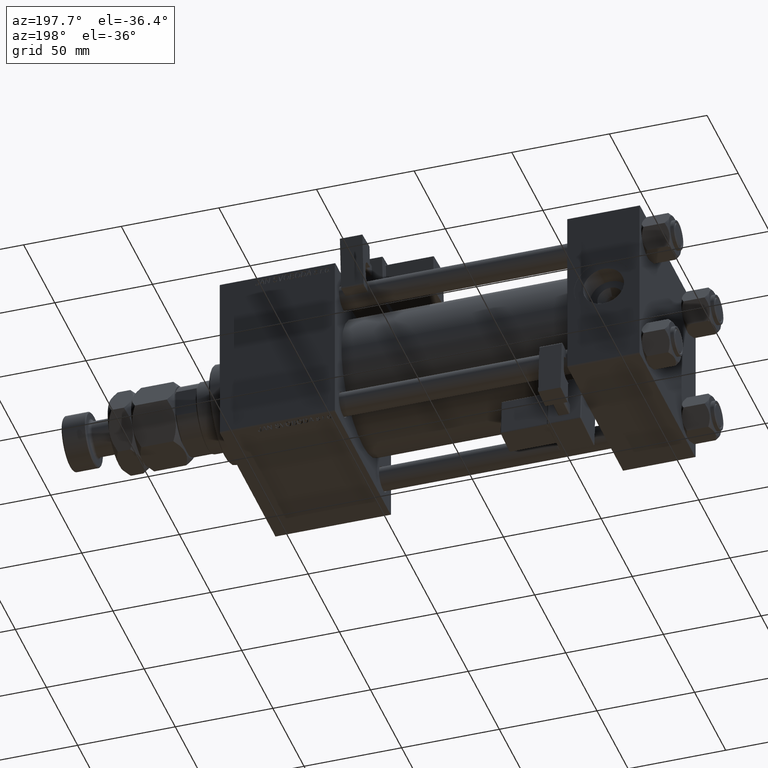
[diagram: clean part render]
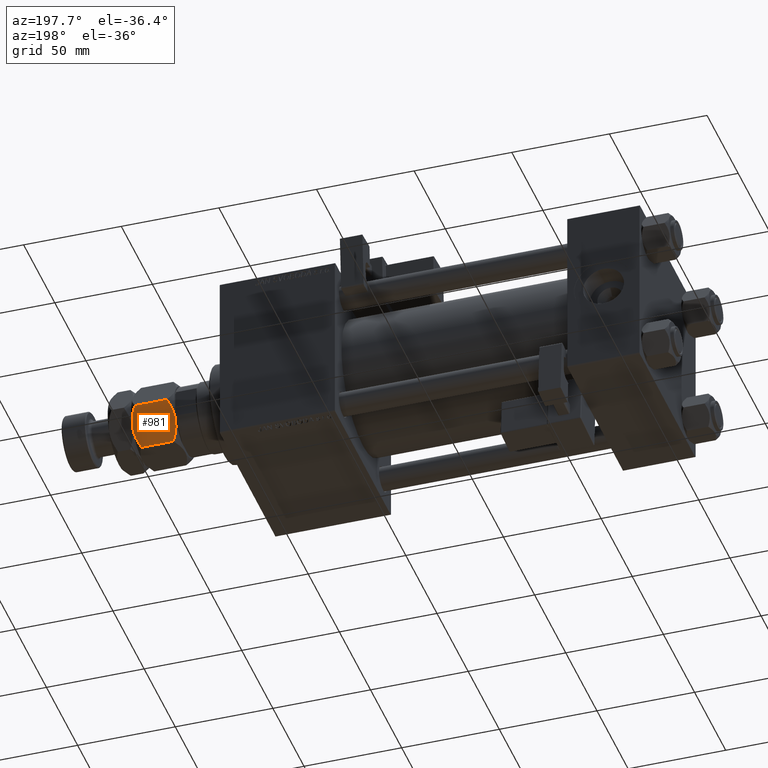
[diagram: same view with one face highlighted and labeled with its STEP entity id]
A machine part, auxiliary view. The second image highlights one B-rep face of the part: STEP entity #981.
In plain terms, the highlighted planar face has unit normal (0, -0.866, 0.5).
Its self-contained STEP definition (entity closure, byte-faithful):
#682 = EDGE_CURVE ( 'NONE', #5321, #36480, #36395, .T. ) ;
#912 = VECTOR ( 'NONE', #33319, 1000.000000000000000 ) ;
#981 = ADVANCED_FACE ( 'NONE', ( #47631 ), #46629, .F. ) ;
#1873 = ORIENTED_EDGE ( 'NONE', *, *, #20002, .T. ) ;
#4564 = CARTESIAN_POINT ( 'NONE',  ( 10.97671975407794953, 14.44719758599053705, 21.86127740090141458 ) ) ;
#5110 = CARTESIAN_POINT ( 'NONE',  ( 16.58866960374795241, 11.20713682960488100, 20.03022229336509596 ) ) ;
#5321 = VERTEX_POINT ( 'NONE', #23184 ) ;
#5369 = CARTESIAN_POINT ( 'NONE',  ( 10.58425150785354418, 14.67378923359658138, 21.91305310988184374 ) ) ;
#6976 = CARTESIAN_POINT ( 'NONE',  ( -1.065242688631141971E-15, 20.78460969082652454, 2.784609690826513440 ) ) ;
#8889 = CARTESIAN_POINT ( 'NONE',  ( 18.00000000000000000, 10.39230484541326227, 22.00000000000000000 ) ) ;
#10409 = CARTESIAN_POINT ( 'NONE',  ( 8.999999999999998224, 15.58845726811989429, 0.000000000000000000 ) ) ;
#10676 = CARTESIAN_POINT ( 'NONE',  ( 5.858009779716799592, 17.40248616759157230, 0.3405631022552657039 ) ) ;
#12007 = ORIENTED_EDGE ( 'NONE', *, *, #54124, .F. ) ;
#13150 = LINE ( 'NONE', #42426, #39775 ) ;
#13320 = CARTESIAN_POINT ( 'NONE',  ( 12.14199022028319774, 13.77442836864821629, 21.65943689774472602 ) ) ;
#14528 = CARTESIAN_POINT ( 'NONE',  ( 12.10430252359947900, 13.79618737047370125, 0.2763959071215808527 ) ) ;
#14799 = CARTESIAN_POINT ( 'NONE',  ( 2.854601888853809388, 19.13650452186755757, 1.277383077889868046 ) ) ;
#15328 = CARTESIAN_POINT ( 'NONE',  ( 8.209538469370125213, 16.04483044561309768, 0.01733285647408576435 ) ) ;
#15786 = CARTESIAN_POINT ( 'NONE',  ( 15.13928418966203004, 12.04393988858690179, 1.272574701504239680 ) ) ;
#16882 = CARTESIAN_POINT ( 'NONE',  ( 15.14539811114618573, 12.04041001437222214, 20.72261692211012729 ) ) ;
#17640 = EDGE_CURVE ( 'NONE', #23674, #23874, #52500, .T. ) ;
#17731 = B_SPLINE_CURVE_WITH_KNOTS ( 'NONE', 3,
 ( #35234, #39085, #51657, #30332, #26191, #51926 ),
 .UNSPECIFIED., .F., .F.,
 ( 4, 2, 4 ),
 ( 0.01077282027732746894, 0.01612137750481873466, 0.02146993473231000385 ),
 .UNSPECIFIED. ) ;
#19158 = CARTESIAN_POINT ( 'NONE',  ( 7.023280245922045140, 16.72971695024924443, 0.1387225990985735125 ) ) ;
#19693 = ORIENTED_EDGE ( 'NONE', *, *, #17640, .F. ) ;
#19841 = EDGE_LOOP ( 'NONE', ( #35276, #48054, #12007, #43043, #1873, #19693 ) ) ;
#20002 = EDGE_CURVE ( 'NONE', #5321, #23874, #33053, .T. ) ;
#20906 = EDGE_CURVE ( 'NONE', #49631, #23674, #28004, .T. ) ;
#21460 = DIRECTION ( 'NONE',  ( 0.8660254037844387076, -0.4999999999999999445, 0.000000000000000000 ) ) ;
#23184 = CARTESIAN_POINT ( 'NONE',  ( 18.00000000000000000, 10.39230484541326227, 19.21539030917347901 ) ) ;
#23674 = VERTEX_POINT ( 'NONE', #10409 ) ;
#23707 = CARTESIAN_POINT ( 'NONE',  ( 18.00000000000000000, 10.39230484541326227, 2.784609690826518325 ) ) ;
#23874 = VERTEX_POINT ( 'NONE', #43463 ) ;
#23979 = CARTESIAN_POINT ( 'NONE',  ( 8.999999999999998224, 15.58845726811989429, 0.000000000000000000 ) ) ;
#25883 = CARTESIAN_POINT ( 'NONE',  ( 9.790461530629873010, 15.13208409062669624, 21.98266714352591578 ) ) ;
#26191 = CARTESIAN_POINT ( 'NONE',  ( 1.409696000463982912, 19.97072132548310108, 20.02927867451694510 ) ) ;
#27087 = CARTESIAN_POINT ( 'NONE',  ( -1.065242688631141971E-15, 20.78460969082652454, 2.784609690826513440 ) ) ;
#28004 = B_SPLINE_CURVE_WITH_KNOTS ( 'NONE', 3,
 ( #27087, #43798, #14799, #31482, #10676, #19158, #52537, #15328, #31740, #48423 ),
 .UNSPECIFIED., .F., .F.,
 ( 4, 2, 2, 2, 4 ),
 ( 2.544307986815284985E-07, 0.005386537354063076002, 0.008079678815695275074, 0.009426249546511372007, 0.01077282027732746894 ),
 .UNSPECIFIED. ) ;
#28350 = CARTESIAN_POINT ( 'NONE',  ( 16.59030399953601531, 11.20619321075668218, 1.970721325483050235 ) ) ;
#28661 = VERTEX_POINT ( 'NONE', #52318 ) ;
#28915 = CARTESIAN_POINT ( 'NONE',  ( 18.00000000000000000, 10.39230484541326227, 22.00000000000000000 ) ) ;
#30332 = CARTESIAN_POINT ( 'NONE',  ( 2.860715810337963738, 19.13297464765287259, 20.72742529849575277 ) ) ;
#31482 = CARTESIAN_POINT ( 'NONE',  ( 5.097327296964719423, 17.84166640377631197, 0.5370855558290075216 ) ) ;
#31740 = CARTESIAN_POINT ( 'NONE',  ( 8.605874323383767788, 15.81600583360882162, -3.502481236896532691E-15 ) ) ;
#32641 = EDGE_CURVE ( 'NONE', #28661, #49631, #13150, .T. ) ;
#33053 = LINE ( 'NONE', #28915, #912 ) ;
#33319 = DIRECTION ( 'NONE',  ( -0.000000000000000000, -0.000000000000000000, -1.000000000000000000 ) ) ;
#35234 = CARTESIAN_POINT ( 'NONE',  ( 9.000000000000000000, 15.58845726811989074, 22.00000000000000000 ) ) ;
#35276 = ORIENTED_EDGE ( 'NONE', *, *, #20906, .F. ) ;
#36395 = B_SPLINE_CURVE_WITH_KNOTS ( 'NONE', 3,
 ( #50797, #5110, #16882, #43137, #13320, #4564, #5369, #25883, #46163, #46425 ),
 .UNSPECIFIED., .F., .F.,
 ( 4, 2, 2, 2, 4 ),
 ( 2.544307986796311447E-07, 0.005386537354063075135, 0.008079678815695273339, 0.009426249546511372007, 0.01077282027732746894 ),
 .UNSPECIFIED. ) ;
#36480 = VERTEX_POINT ( 'NONE', #48322 ) ;
#38161 = DIRECTION ( 'NONE',  ( -0.4999999999999999445, -0.8660254037844387076, 0.000000000000000000 ) ) ;
#39085 = CARTESIAN_POINT ( 'NONE',  ( 7.434539168300457135, 16.49227650070744033, 22.00000000000000711 ) ) ;
#39546 = AXIS2_PLACEMENT_3D ( 'NONE', #8889, #38161, #21460 ) ;
#39775 = VECTOR ( 'NONE', #46516, 1000.000000000000000 ) ;
#42426 = CARTESIAN_POINT ( 'NONE',  ( 0.000000000000000000, 20.78460969082652454, 22.00000000000000000 ) ) ;
#43043 = ORIENTED_EDGE ( 'NONE', *, *, #682, .F. ) ;
#43137 = CARTESIAN_POINT ( 'NONE',  ( 12.90267270303527525, 13.33524813246346952, 21.46291444417098759 ) ) ;
#43463 = CARTESIAN_POINT ( 'NONE',  ( 18.00000000000000000, 10.39230484541326227, 2.784609690826518325 ) ) ;
#43798 = CARTESIAN_POINT ( 'NONE',  ( 1.411330396252046260, 19.96977770663490759, 1.969777706634896708 ) ) ;
#46163 = CARTESIAN_POINT ( 'NONE',  ( 9.394125676616230436, 15.36090870263096875, 22.00000000000000000 ) ) ;
#46425 = CARTESIAN_POINT ( 'NONE',  ( 9.000000000000000000, 15.58845726811989074, 22.00000000000000000 ) ) ;
#46516 = DIRECTION ( 'NONE',  ( -0.000000000000000000, -0.000000000000000000, -1.000000000000000000 ) ) ;
#46629 = PLANE ( 'NONE',  #39546 ) ;
#47631 = FACE_OUTER_BOUND ( 'NONE', #19841, .T. ) ;
#48054 = ORIENTED_EDGE ( 'NONE', *, *, #32641, .F. ) ;
#48322 = CARTESIAN_POINT ( 'NONE',  ( 9.000000000000000000, 15.58845726811989074, 22.00000000000000000 ) ) ;
#48423 = CARTESIAN_POINT ( 'NONE',  ( 8.999999999999998224, 15.58845726811989429, 0.000000000000000000 ) ) ;
#49631 = VERTEX_POINT ( 'NONE', #6976 ) ;
#50797 = CARTESIAN_POINT ( 'NONE',  ( 18.00000000000000000, 10.39230484541326227, 19.21539030917347901 ) ) ;
#51657 = CARTESIAN_POINT ( 'NONE',  ( 5.895697476400520110, 17.38072716576608201, 21.72360409287842131 ) ) ;
#51926 = CARTESIAN_POINT ( 'NONE',  ( -2.339913671058857151E-16, 20.78460969082652454, 19.21539030917348256 ) ) ;
#52318 = CARTESIAN_POINT ( 'NONE',  ( -2.339913671058857151E-16, 20.78460969082652454, 19.21539030917348256 ) ) ;
#52500 = B_SPLINE_CURVE_WITH_KNOTS ( 'NONE', 3,
 ( #23979, #53273, #14528, #15786, #28350, #23707 ),
 .UNSPECIFIED., .F., .F.,
 ( 4, 2, 4 ),
 ( 0.01077282027732746894, 0.01612137750481873466, 0.02146993473231000038 ),
 .UNSPECIFIED. ) ;
#52537 = CARTESIAN_POINT ( 'NONE',  ( 7.415748492146453152, 16.50312530264320898, 0.08694689011815050217 ) ) ;
#53273 = CARTESIAN_POINT ( 'NONE',  ( 10.56546083169953754, 14.68463803553234825, -3.293264098924718535E-15 ) ) ;
#54124 = EDGE_CURVE ( 'NONE', #36480, #28661, #17731, .T. ) ;